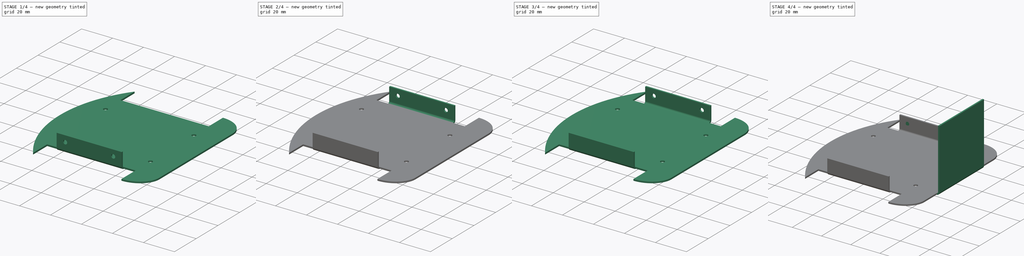
[diagram: build sequence overview — one tinted view per stage of 4, left to right]
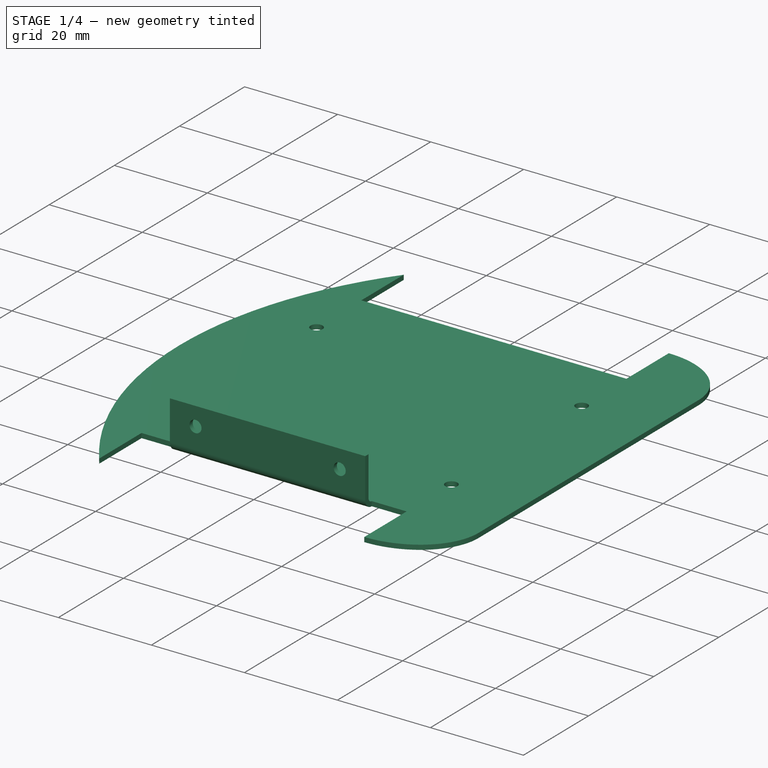
[diagram: stage 1 of 4 — iso view after this stage's code; geometry added in this stage tinted green]
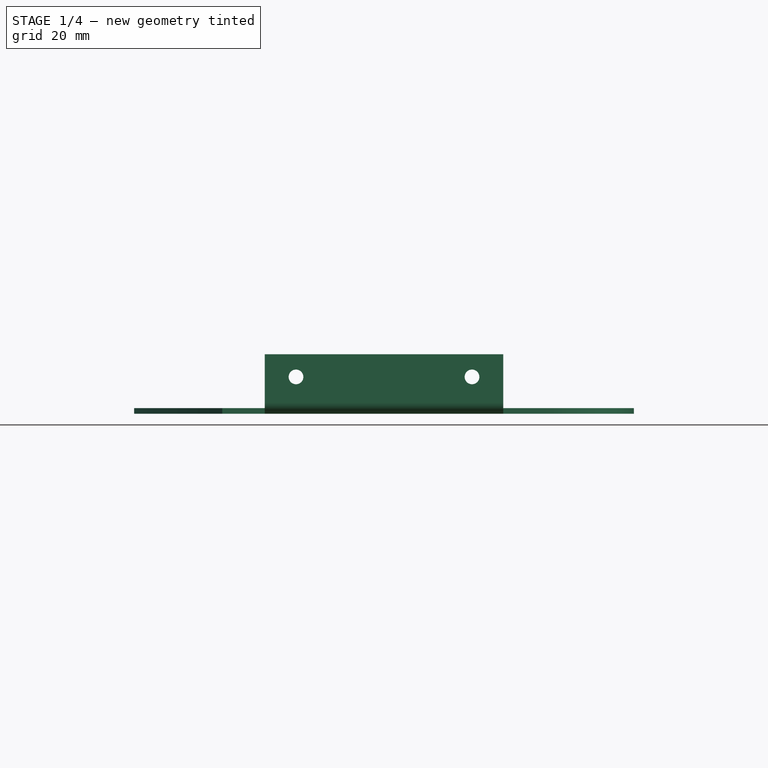
[diagram: stage 1 of 4 — front view after this stage's code; geometry added in this stage tinted green]
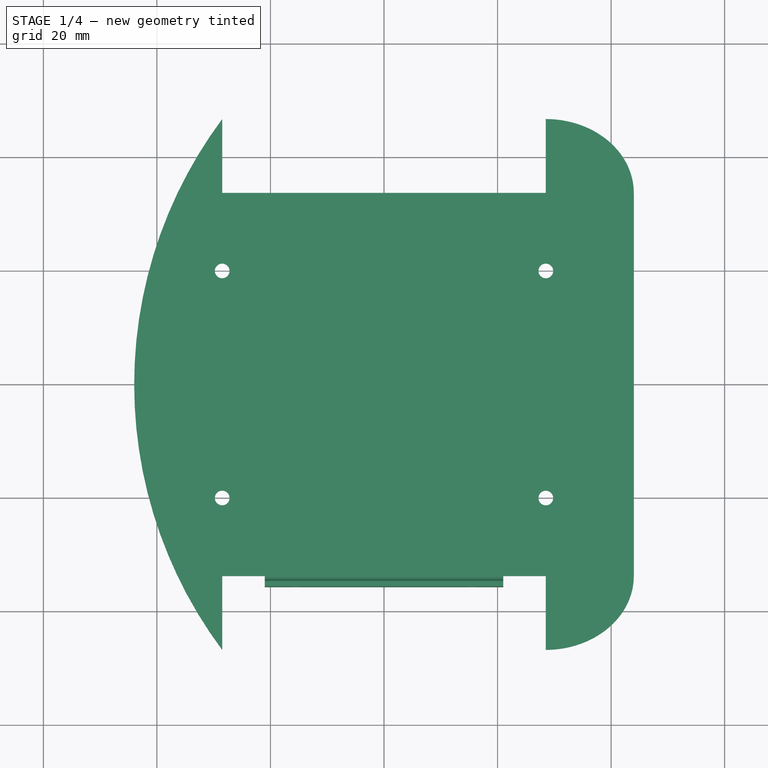
[diagram: stage 1 of 4 — top view after this stage's code; geometry added in this stage tinted green]
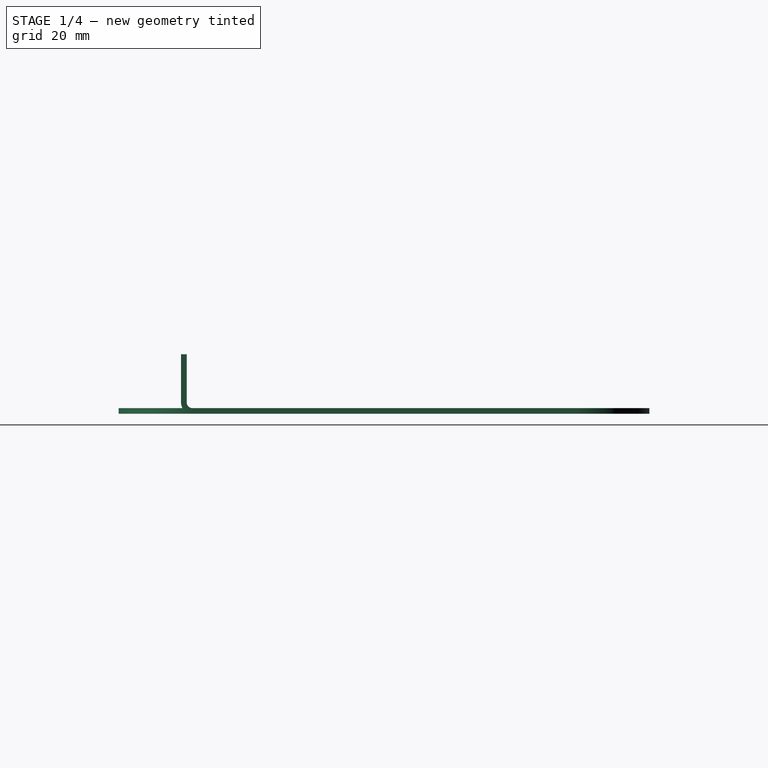
[diagram: stage 1 of 4 — right view after this stage's code; geometry added in this stage tinted green]
FCSTD DOCUMENT  (FreeCAD 0.16R6704 (Git))
Label: chassis
License: All rights reserved
LicenseURL: http://en.wikipedia.org/wiki/All_rights_reserved
objects: Part::Fuse×5, Sketcher::SketchObject×3, Part::FeaturePython×3, PartDesign::Pocket×2, PartDesign::Pad×1
note: 17 computed .brp shape members not serialized (recipe doc carries the construction recipe); baked Part::Feature solids carry a one-line shape summary decoded from their .brp

FEATURE [Sketcher::SketchObject] Sketch
  sketch-geometry (29):
    g0: LineSegment StartX=44 StartY=33.75 StartZ=0 EndX=44 EndY=-33.75 EndZ=0
    g1: LineSegment StartX=28.5 StartY=-46.75 StartZ=0 EndX=28.5 EndY=-33.75 EndZ=0
    g2: LineSegment StartX=28.5 StartY=-33.75 StartZ=0 EndX=-28.5 EndY=-33.75 EndZ=0
    g3: LineSegment StartX=-28.5 StartY=-33.75 StartZ=0 EndX=-28.5 EndY=-46.75 EndZ=0
    g4: LineSegment StartX=-28.5 StartY=46.75 StartZ=0 EndX=-28.5 EndY=33.75 EndZ=0
    g5: LineSegment StartX=-28.5 StartY=33.75 StartZ=0 EndX=28.5 EndY=33.75 EndZ=0
    g6: LineSegment StartX=28.5 StartY=33.75 StartZ=0 EndX=28.5 EndY=46.75 EndZ=0
    g7: LineSegment [constr] StartX=-28.5 StartY=46.75 StartZ=0 EndX=-44 EndY=46.75 EndZ=0
    g8: LineSegment [constr] StartX=-44 StartY=46.75 StartZ=0 EndX=-44 EndY=-46.75 EndZ=0
    g9: LineSegment [constr] StartX=-44 StartY=-46.75 StartZ=0 EndX=-28.5 EndY=-46.75 EndZ=0
    g10: ArcOfCircle CenterX=34.252 CenterY=0 CenterZ=0 NormalX=0 NormalY=0 NormalZ=1 Radius=78.252 StartAngle=2.5013 EndAngle=3.78188
    g11: LineSegment [constr] StartX=-21 StartY=33.75 StartZ=0 EndX=21 EndY=33.75 EndZ=0
    g12: LineSegment [constr] StartX=21 StartY=33.75 StartZ=0 EndX=21 EndY=-33.75 EndZ=0
    g13: LineSegment [constr] StartX=21 StartY=-33.75 StartZ=0 EndX=-21 EndY=-33.75 EndZ=0
    g14: LineSegment [constr] StartX=-21 StartY=-33.75 StartZ=0 EndX=-21 EndY=33.75 EndZ=0
    g15: Circle CenterX=-28.5 CenterY=20 CenterZ=0 NormalX=0 NormalY=0 NormalZ=1 Radius=1.295
    g16: Circle CenterX=-28.5 CenterY=-20 CenterZ=0 NormalX=0 NormalY=0 NormalZ=1 Radius=1.295
    g17: Circle CenterX=28.5 CenterY=20 CenterZ=0 NormalX=0 NormalY=0 NormalZ=1 Radius=1.295
    g18: Circle CenterX=28.5 CenterY=-20 CenterZ=0 NormalX=0 NormalY=0 NormalZ=1 Radius=1.295
    g19: ArcOfEllipse CenterX=28.5 CenterY=-33.75 CenterZ=0 NormalX=0 NormalY=0 NormalZ=1 MajorRadius=15.5 MinorRadius=13 AngleXU=-3.14159 StartAngle=1.5708 EndAngle=3.14159
    g20: LineSegment [constr] StartX=13 StartY=-33.75 StartZ=0 EndX=44 EndY=-33.75 EndZ=0
    g21: LineSegment [constr] StartX=28.5 StartY=-46.75 StartZ=0 EndX=28.5 EndY=-20.75 EndZ=0
    g22: GeomPoint [constr] X=20.059 Y=-33.75 Z=0
    g23: GeomPoint [constr] X=36.941 Y=-33.75 Z=0
    g24: ArcOfEllipse CenterX=28.5 CenterY=33.75 CenterZ=0 NormalX=0 NormalY=0 NormalZ=1 MajorRadius=15.5 MinorRadius=13 AngleXU=0 StartAngle=0 EndAngle=1.5708
    g25: LineSegment [constr] StartX=44 StartY=33.75 StartZ=0 EndX=13 EndY=33.75 EndZ=0
    g26: LineSegment [constr] StartX=28.5 StartY=46.75 StartZ=0 EndX=28.5 EndY=20.75 EndZ=0
    g27: GeomPoint [constr] X=36.941 Y=33.75 Z=0
    g28: GeomPoint [constr] X=20.059 Y=33.75 Z=0
  constraints (69):
    c: Vertical(g0)
    c: Horizontal(g2)
    c: Horizontal(g5)
    c: DistanceY(g3,g3) = 13
    c: DistanceY(g1,g1) = 13
    c: Symmetric(g2,g1,g-2)
    c: DistanceY(g2,g4) = 67.5
    c: Coincident(g4,g7)
    c: Horizontal(g7)
    c: Coincident(g7,g8)
    c: Vertical(g8)
    c: Coincident(g8,g9)
    c: Coincident(g9,g3)
    c: Horizontal(g9)
    c: Coincident(g10,g4)
    c: Coincident(g10,g3)
    c: Tangent(g10,g8)
    c: DistanceX(g9,g9) = 15.5
    c: DistanceX(g2,g2) = 57
    c: Coincident(g1,g2)
    c: Vertical(g1)
    c: DistanceX(g5,g5) = 57
    c: Coincident(g6,g5)
    c: Vertical(g6)
    c: Coincident(g4,g5)
    c: Vertical(g4)
    c: Symmetric(g4,g5,g-2)
    c: Coincident(g3,g2)
    c: Symmetric(g2,g4,g-1)
    c: Vertical(g3)
    c: DistanceY(g4,g4) = 13
    c: Coincident(g11,g12)
    c: Coincident(g12,g13)
    c: Coincident(g13,g14)
    c: Coincident(g14,g11)
    c: Horizontal(g11)
    c: Horizontal(g13)
    c: Vertical(g12)
    c: Vertical(g14)
    c: PointOnObject(g11,g5)
    c: PointOnObject(g12,g2)
    c: Symmetric(g11,g11,g-2)
    c: DistanceX(g11,g11) = 42
    c: Symmetric(g16,g15,g-1)
    c: Symmetric(g17,g18,g-1)
    c: Radius(g15) = 1.295
    c: Radius(g16) = 1.295
    c: Radius(g17) = 1.295
    c: Radius(g18) = 1.295
    c: DistanceX(g15,g17) = 57
    c: Symmetric(g15,g17,g-2)
    c: DistanceY(g18,g17) = 40
    c: DistanceX(g1,g0) = 15.5
    c: Symmetric(g0,g0,g-1)
    c: InternalAlignment(g20-g23 -> g19) x4
    c: Coincident(g19,g1)
    c: PointOnObject(g0,g19)
    c: Coincident(g21,g1)
    c: PointOnObject(g19,g1)
    c: InternalAlignment(g25-g28 -> g24) x4
    c: Coincident(g24,g5)
    c: PointOnObject(g0,g24)
    c: Coincident(g24,g6)
    c: Coincident(g24,g25)
    c: DistanceY(g6,g6) = 13
    c: Coincident(g19,g0)
    c: Coincident(g0,g24)
    c: DistanceY(g0,g0) = 67.5
    c: Coincident(g25,g0)
FEATURE [PartDesign::Pad] Pad  label="シャーシ"
  Length = 1
  Length2 = 100
  Sketch = -> Sketch
  Type = 0
FEATURE [Part::FeaturePython] Bend  label="手前モーター立ち上げ"  # WARN: FeaturePython — macro-defined, semantics opaque (R4)
  angle = 90
  baseObject = -> Pad [Face4]
  gap1 = 7.5
  gap2 = 7.5
  invert = false
  length = 8.5
  radius = 1
  reliefd = 0
  reliefw = 0
FEATURE [Sketcher::SketchObject] Sketch001
  Placement = pos=(0,-35.75,0) rot=(1,0,0;1.5708rad)
  Support = -> Bend [Face3]
  sketch-geometry (3):
    g0: LineSegment [constr] StartX=-15.5 StartY=6.5 StartZ=0 EndX=15.5 EndY=6.5 EndZ=0
    g1: Circle CenterX=-15.5 CenterY=6.5 CenterZ=0 NormalX=0 NormalY=0 NormalZ=1 Radius=1.295
    g2: Circle CenterX=15.5 CenterY=6.5 CenterZ=0 NormalX=0 NormalY=0 NormalZ=1 Radius=1.295
  constraints (8):
    c: Horizontal(g0)
    c: DistanceX(g0,g0) = 31
    c: Symmetric(g0,g0,g-2)
    c: DistanceY(g0) = 6.5
    c: Coincident(g1,g0)
    c: Coincident(g2,g0)
    c: Radius(g1) = 1.295
    c: Radius(g2) = 1.295
FEATURE [PartDesign::Pocket] Pocket  label="手前モーターネジ穴"
  Length = 1
  Sketch = -> Sketch001
  Type = 0
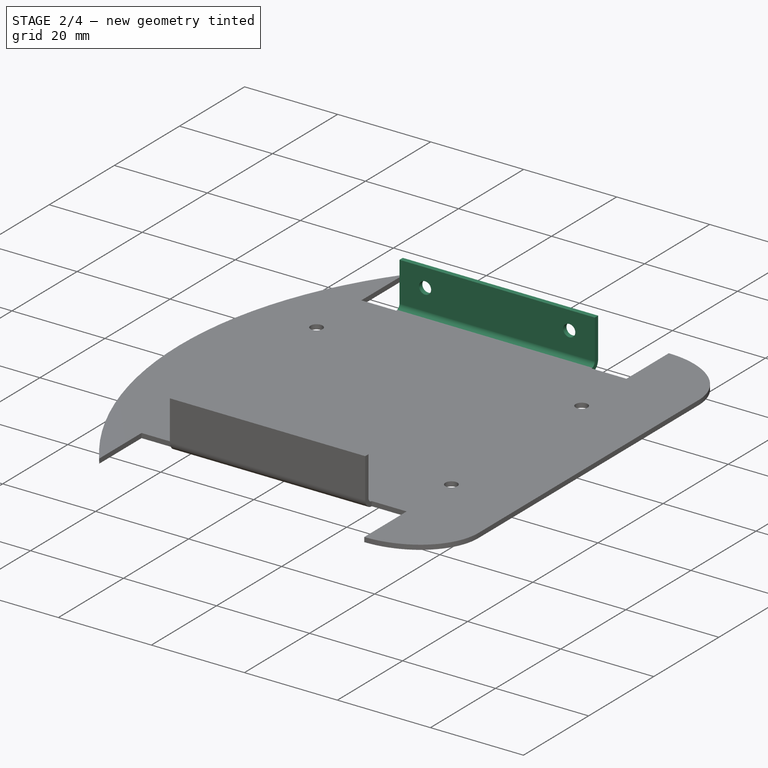
[diagram: stage 2 of 4 — iso view after this stage's code; geometry added in this stage tinted green]
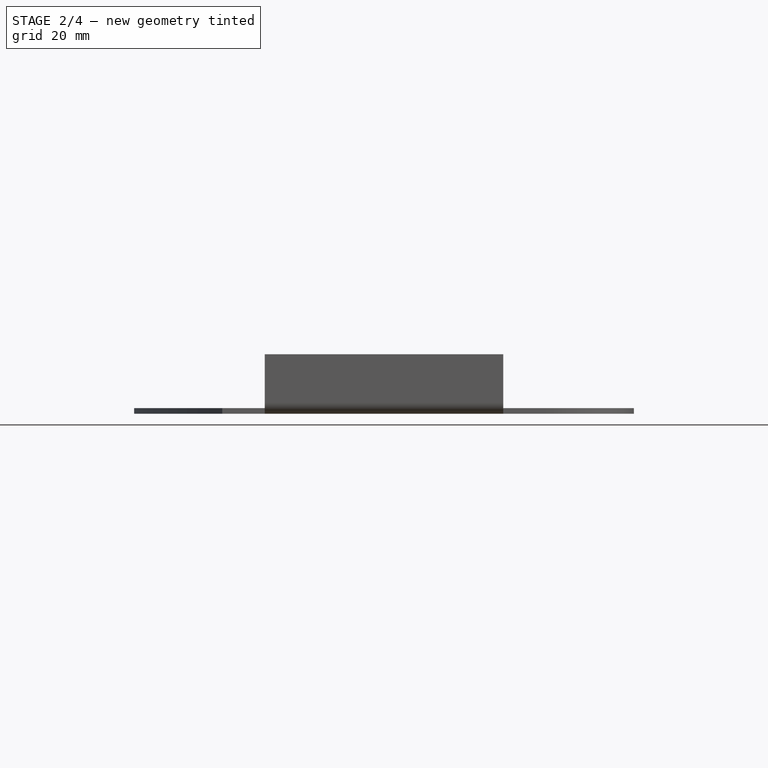
[diagram: stage 2 of 4 — front view after this stage's code; geometry added in this stage tinted green]
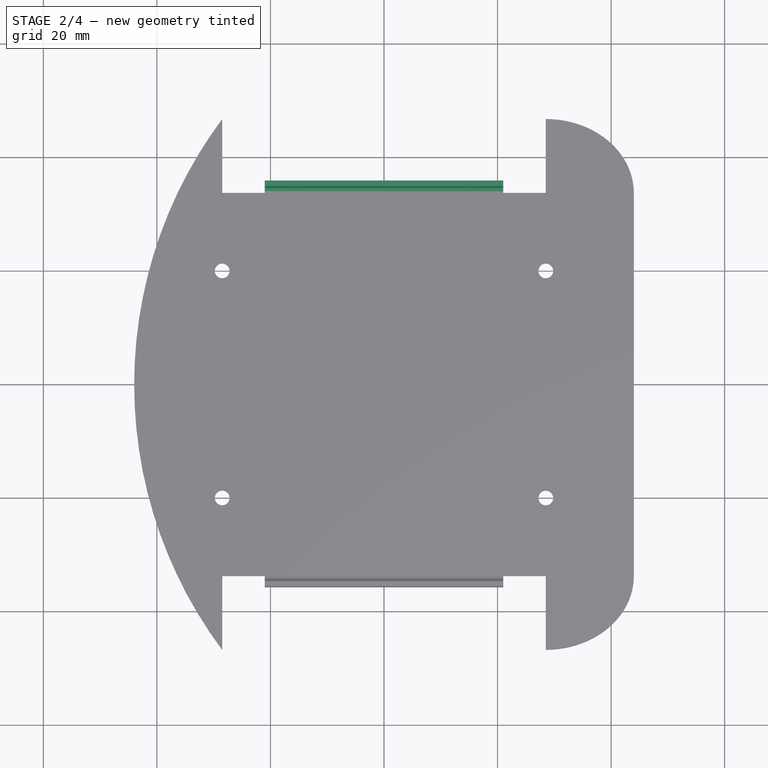
[diagram: stage 2 of 4 — top view after this stage's code; geometry added in this stage tinted green]
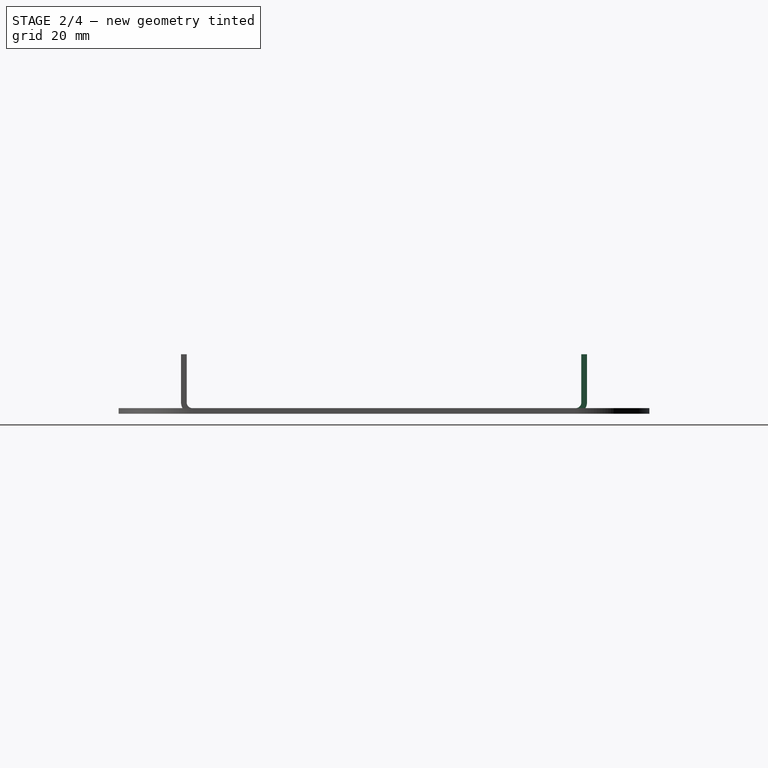
[diagram: stage 2 of 4 — right view after this stage's code; geometry added in this stage tinted green]
FEATURE [Part::FeaturePython] Bend001  label="奥モーター立ち上げ"  # WARN: FeaturePython — macro-defined, semantics opaque (R4)
  angle = 90
  baseObject = -> Bend [Face19]
  gap1 = 7.5
  gap2 = 7.5
  invert = false
  length = 8.5
  radius = 1
  reliefd = 0
  reliefw = 0
FEATURE [Sketcher::SketchObject] Sketch002
  Placement = pos=(0,35.75,0) rot=(0,0.707107,0.707107;3.14159rad)
  Support = -> Bend001 [Face3]
  sketch-geometry (3):
    g0: LineSegment [constr] StartX=-15.5 StartY=6.5 StartZ=0 EndX=15.5 EndY=6.5 EndZ=0
    g1: Circle CenterX=-15.5 CenterY=6.5 CenterZ=0 NormalX=0 NormalY=0 NormalZ=1 Radius=1.295
    g2: Circle CenterX=15.5 CenterY=6.5 CenterZ=0 NormalX=0 NormalY=0 NormalZ=1 Radius=1.295
  constraints (8):
    c: Horizontal(g0)
    c: DistanceX(g0,g0) = 31
    c: Symmetric(g0,g0,g-2)
    c: DistanceY(g0) = 6.5
    c: Coincident(g1,g0)
    c: Coincident(g2,g0)
    c: Radius(g1) = 1.295
    c: Radius(g2) = 1.295
FEATURE [PartDesign::Pocket] Pocket001  label="奥モーターネジ穴"
  Length = 1
  Sketch = -> Sketch002
  Type = 0
FEATURE [Part::Fuse] Fusion
  Base = -> Pad
  Tool = -> Pocket
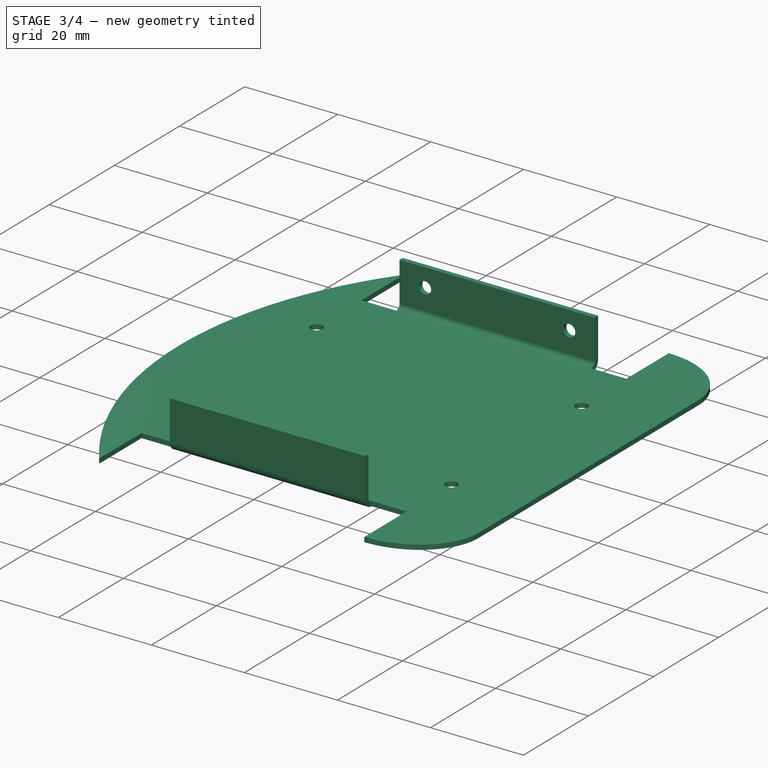
[diagram: stage 3 of 4 — iso view after this stage's code; geometry added in this stage tinted green]
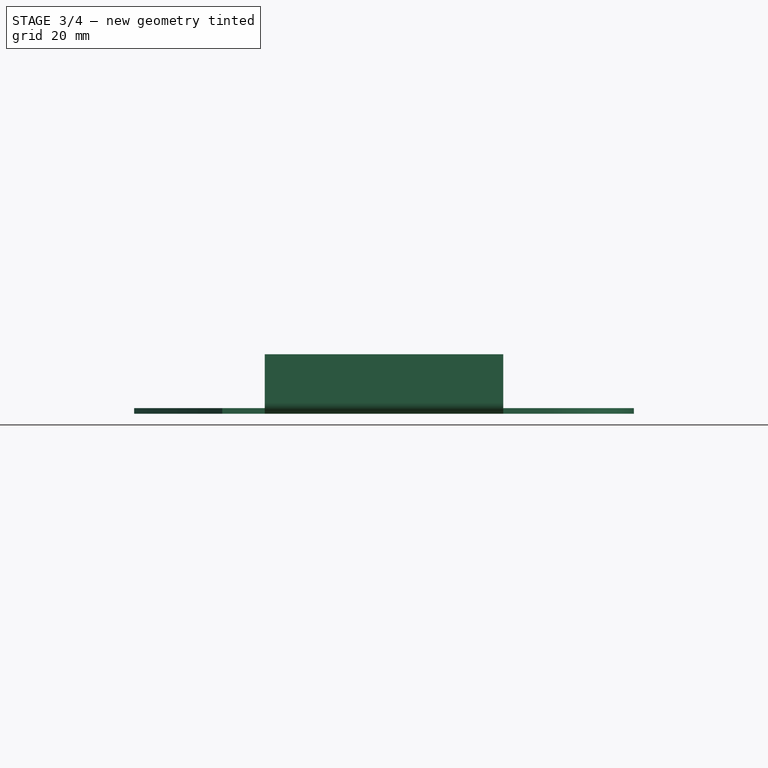
[diagram: stage 3 of 4 — front view after this stage's code; geometry added in this stage tinted green]
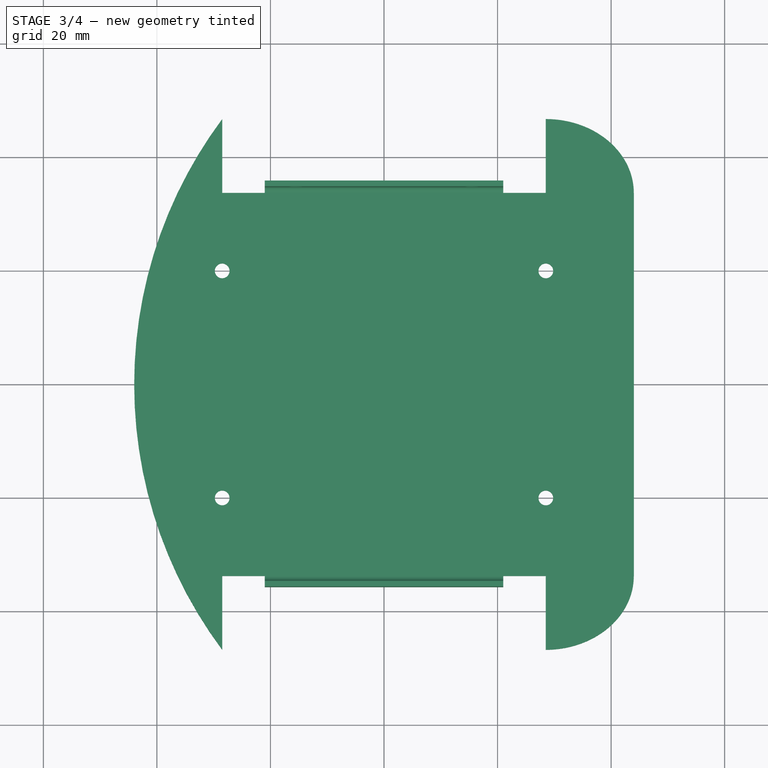
[diagram: stage 3 of 4 — top view after this stage's code; geometry added in this stage tinted green]
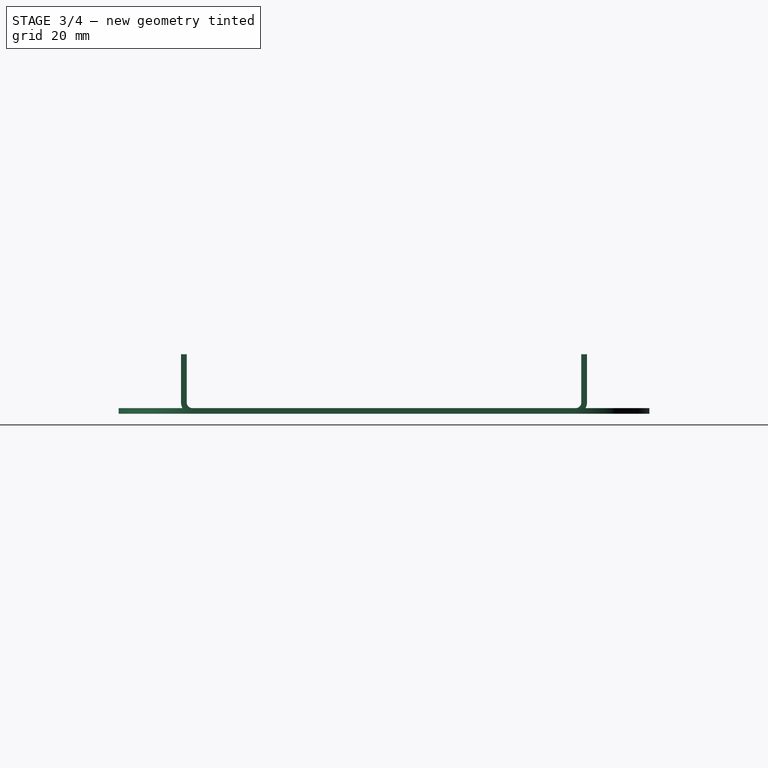
[diagram: stage 3 of 4 — right view after this stage's code; geometry added in this stage tinted green]
FEATURE [Part::Fuse] Fusion001
  Base = -> Fusion
  Tool = -> Pocket001
FEATURE [Part::Fuse] Fusion002
  Base = -> Bend
  Tool = -> Fusion001
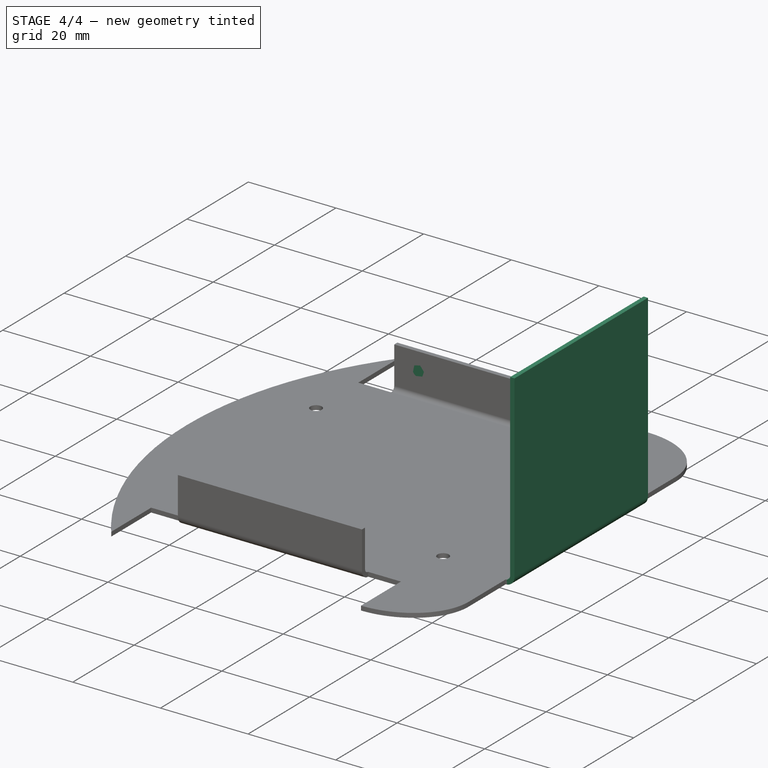
[diagram: stage 4 of 4 — iso view after this stage's code; geometry added in this stage tinted green]
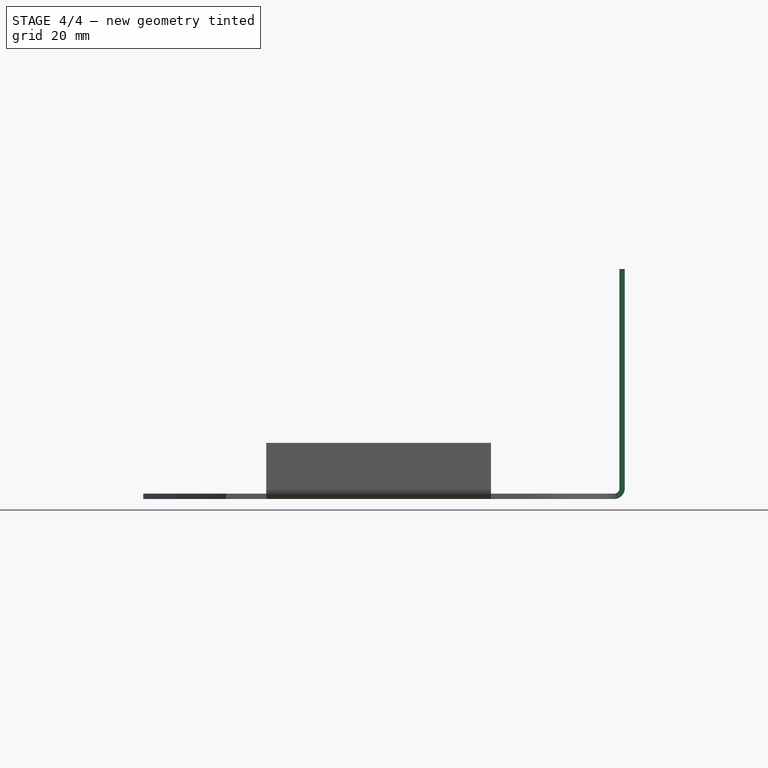
[diagram: stage 4 of 4 — front view after this stage's code; geometry added in this stage tinted green]
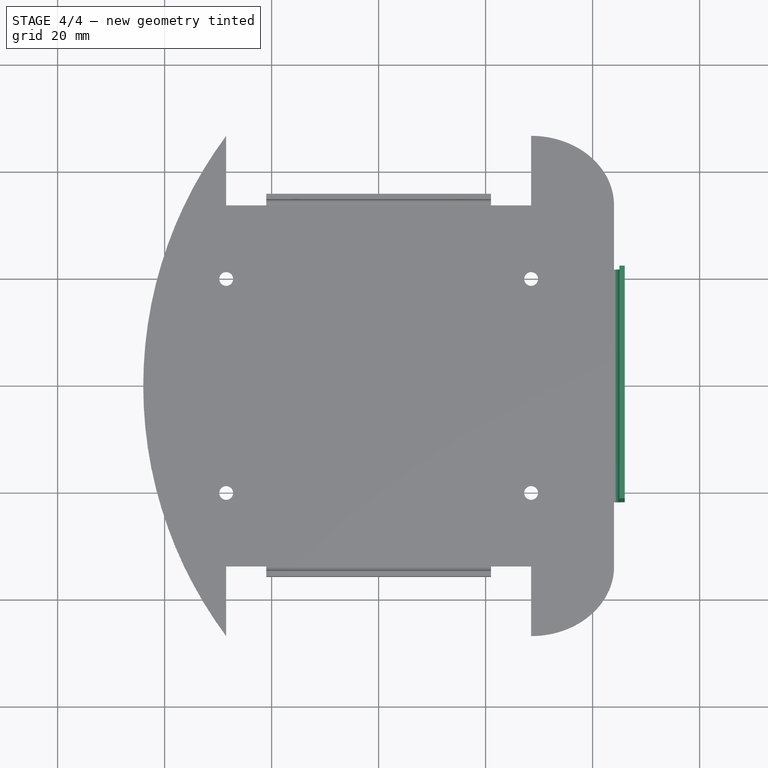
[diagram: stage 4 of 4 — top view after this stage's code; geometry added in this stage tinted green]
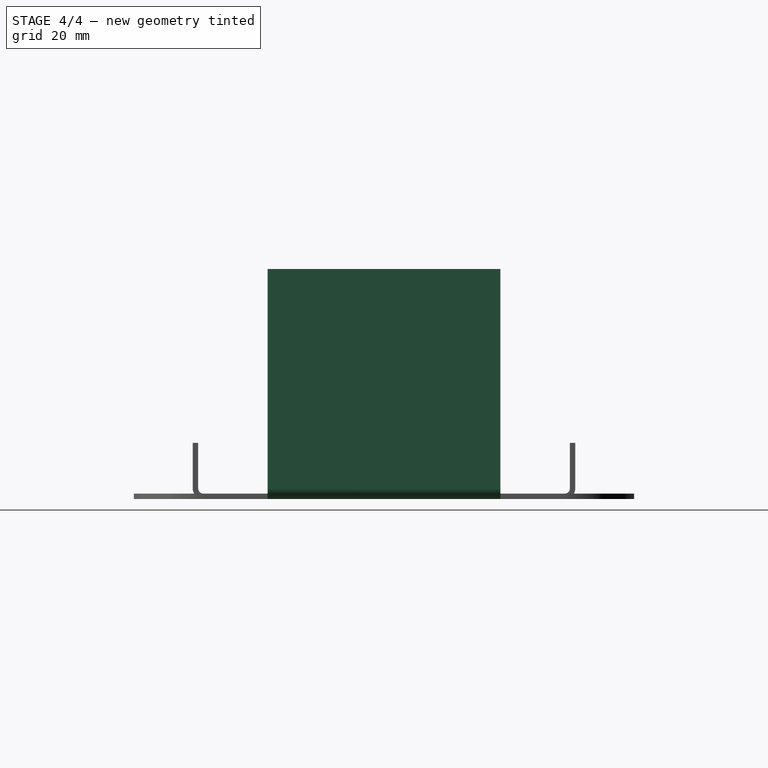
[diagram: stage 4 of 4 — right view after this stage's code; geometry added in this stage tinted green]
FEATURE [Part::FeaturePython] Bend002  label="バッテリカバー"  # WARN: FeaturePython — macro-defined, semantics opaque (R4)
  angle = 90
  baseObject = -> Bend001 [Face15]
  gap1 = 12
  gap2 = 12
  invert = false
  length = 41
  radius = 1
  reliefd = 0
  reliefw = 0
FEATURE [Part::Fuse] Fusion003
  Base = -> Bend001
  Tool = -> Fusion002
FEATURE [Part::Fuse] Fusion004
  Base = -> Bend002
  Tool = -> Fusion003
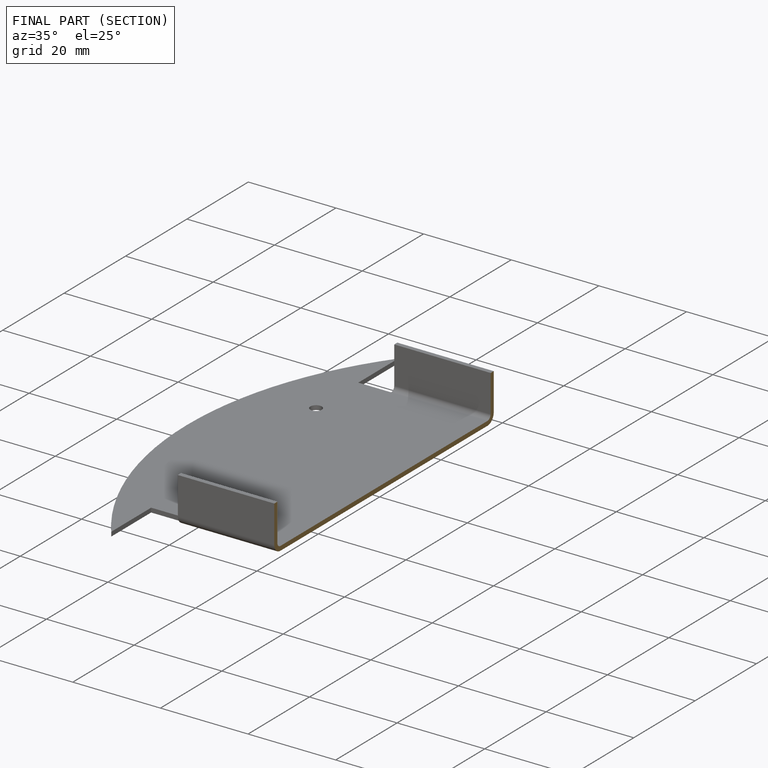
[diagram: finished part — half-section view (interior)]
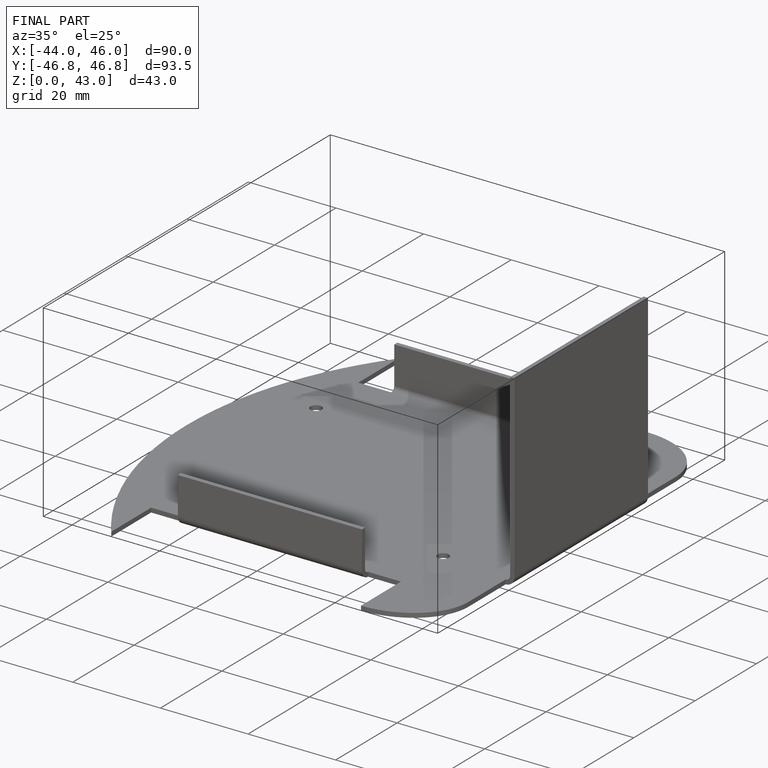
[diagram: finished part — iso view with bounding-box wireframe]
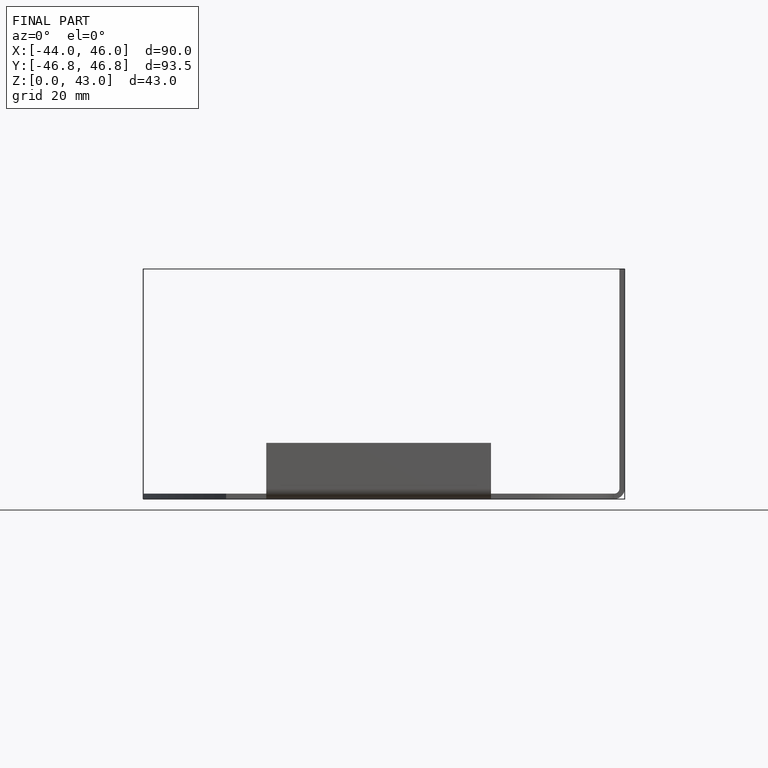
[diagram: finished part — front view with bounding-box wireframe]
